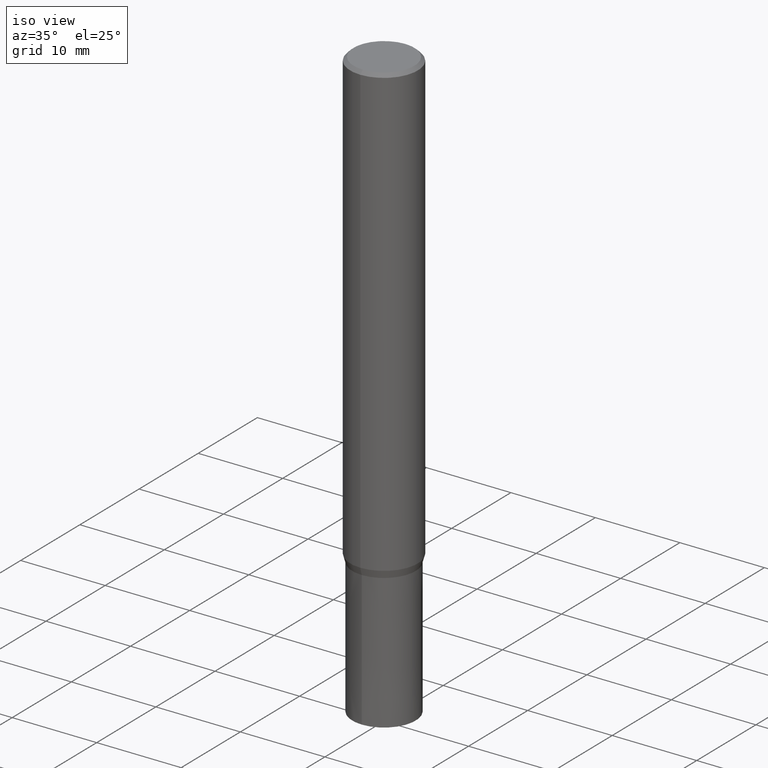
[diagram: clean part render]
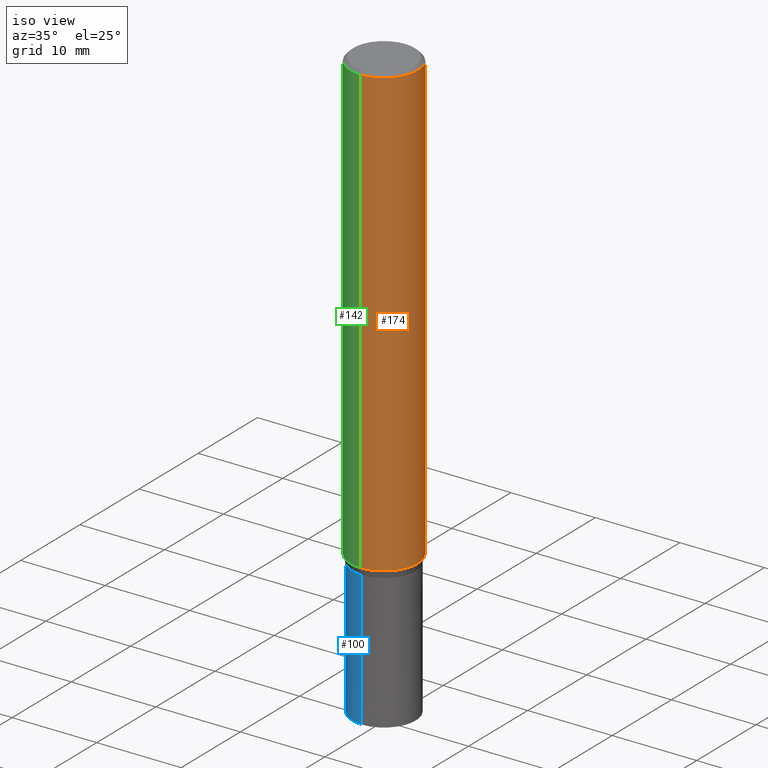
[diagram: same view with three faces highlighted in distinct colors, each labeled with its STEP entity id]
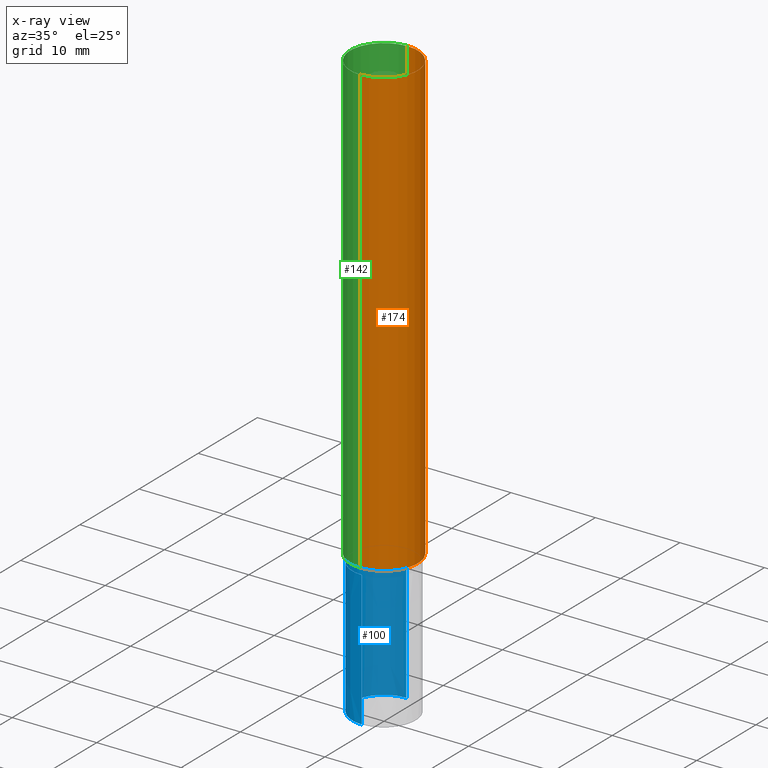
[diagram: x-ray of the same camera — body ghosted, the three highlighted faces saturated]
A machine part, iso view with three faces highlighted in distinct colors.
The next image is the same camera in x-ray (body ghosted, the three faces saturated) — at least one of them is partly hidden behind the body in this view.
Their STEP definitions:

[orange] entity #174 — the highlighted cylindrical surface (partial cylindrical patch) has radius 4 mm, axis along (-0, -0, 1).
#98=EDGE_CURVE('',#120,#150,#222,.T.);
#112=EDGE_CURVE('',#134,#128,#238,.T.);
#120=VERTEX_POINT('',#247);
#126=EDGE_CURVE('',#134,#120,#255,.T.);
#128=VERTEX_POINT('',#257);
#134=VERTEX_POINT('',#264);
#150=VERTEX_POINT('',#281);
#160=EDGE_CURVE('',#150,#128,#291,.T.);
#174=ADVANCED_FACE('',(#307),#308,.T.);
#222=CIRCLE('',#351,4.0);
#238=CIRCLE('',#369,4.0);
#247=CARTESIAN_POINT('',(0.0,4.0,-53.128));
#255=LINE('',#388,#389);
#257=CARTESIAN_POINT('',(4.89842541528951E-016,-4.0,-0.399999999999999));
#264=CARTESIAN_POINT('',(0.0,4.0,-0.399999999999999));
#281=CARTESIAN_POINT('',(4.89842541528951E-016,-4.0,-53.128));
#291=LINE('',#436,#437);
#307=FACE_OUTER_BOUND('',#458,.T.);
#308=CYLINDRICAL_SURFACE('',#459,4.0);
#351=AXIS2_PLACEMENT_3D('',#492,#493,#494);
#369=AXIS2_PLACEMENT_3D('',#514,#515,#516);
#388=CARTESIAN_POINT('',(-4.89842541528951E-016,4.0,-26.764));
#389=VECTOR('',#542,1.0);
#436=CARTESIAN_POINT('',(4.89842541528951E-016,-4.0,-26.764));
#437=VECTOR('',#573,1.0);
#458=EDGE_LOOP('',(#597,#598,#599,#600));
#459=AXIS2_PLACEMENT_3D('',#601,#602,#603);
#492=CARTESIAN_POINT('',(0.0,0.0,-53.128));
#493=DIRECTION('',(0.0,0.0,-1.0));
#494=DIRECTION('',(0.0,1.0,0.0));
#514=CARTESIAN_POINT('',(0.0,0.0,-0.399999999999999));
#515=DIRECTION('',(0.0,0.0,-1.0));
#516=DIRECTION('',(0.0,1.0,0.0));
#542=DIRECTION('',(0.0,0.0,-1.0));
#573=DIRECTION('',(-0.0,-0.0,1.0));
#597=ORIENTED_EDGE('',*,*,#126,.F.);
#598=ORIENTED_EDGE('',*,*,#112,.T.);
#599=ORIENTED_EDGE('',*,*,#160,.F.);
#600=ORIENTED_EDGE('',*,*,#98,.F.);
#601=CARTESIAN_POINT('',(0.0,0.0,-26.764));
#602=DIRECTION('',(-0.0,-0.0,1.0));
#603=DIRECTION('',(0.0,1.0,0.0));

[blue] entity #100 — the highlighted conical surface has half-angle 0 deg.
#84=EDGE_CURVE('',#106,#118,#205,.T.);
#94=VERTEX_POINT('',#217);
#100=ADVANCED_FACE('',(#224),#225,.T.);
#106=VERTEX_POINT('',#231);
#118=VERTEX_POINT('',#245);
#136=VERTEX_POINT('',#266);
#138=EDGE_CURVE('',#136,#118,#268,.T.);
#148=EDGE_CURVE('',#136,#94,#279,.T.);
#176=EDGE_CURVE('',#94,#106,#310,.T.);
#205=LINE('',#333,#334);
#217=CARTESIAN_POINT('',(4.59215136619853E-016,-3.7499,-54.0));
#224=FACE_OUTER_BOUND('',#353,.T.);
#225=CONICAL_SURFACE('',#354,3.74995,6.24999999993181E-006);
#231=CARTESIAN_POINT('',(0.0,3.7499,-54.0));
#245=CARTESIAN_POINT('',(0.0,3.75,-70.0));
#266=CARTESIAN_POINT('',(4.59227382683391E-016,-3.75,-70.0));
#268=CIRCLE('',#405,3.75);
#279=LINE('',#419,#420);
#310=CIRCLE('',#462,3.7499);
#333=CARTESIAN_POINT('',(-4.59221259651622E-016,3.74995,-62.0));
#334=VECTOR('',#476,1.0);
#353=EDGE_LOOP('',(#496,#497,#498,#499));
#354=AXIS2_PLACEMENT_3D('',#500,#501,#502);
#405=AXIS2_PLACEMENT_3D('',#552,#553,#554);
#419=CARTESIAN_POINT('',(4.59221259651622E-016,-3.74995,-62.0));
#420=VECTOR('',#564,1.0);
#462=AXIS2_PLACEMENT_3D('',#604,#605,#606);
#476=DIRECTION('',(-7.65378971125652E-022,6.24999999989112E-006,-0.999999999980469));
#496=ORIENTED_EDGE('',*,*,#84,.T.);
#497=ORIENTED_EDGE('',*,*,#138,.F.);
#498=ORIENTED_EDGE('',*,*,#148,.T.);
#499=ORIENTED_EDGE('',*,*,#176,.T.);
#500=CARTESIAN_POINT('',(0.0,0.0,-62.0));
#501=DIRECTION('',(0.0,-0.0,-1.0));
#502=DIRECTION('',(0.0,1.0,0.0));
#552=CARTESIAN_POINT('',(0.0,0.0,-70.0));
#553=DIRECTION('',(0.0,0.0,-1.0));
#554=DIRECTION('',(0.0,1.0,0.0));
#564=DIRECTION('',(-7.65378971125652E-022,6.24999999989112E-006,0.999999999980469));
#604=CARTESIAN_POINT('',(0.0,0.0,-54.0));
#605=DIRECTION('',(0.0,0.0,-1.0));
#606=DIRECTION('',(0.0,1.0,0.0));

[green] entity #142 — the highlighted cylindrical surface (partial cylindrical patch) has radius 4 mm, axis along (-0, -0, 1).
#120=VERTEX_POINT('',#247);
#126=EDGE_CURVE('',#134,#120,#255,.T.);
#128=VERTEX_POINT('',#257);
#134=VERTEX_POINT('',#264);
#142=ADVANCED_FACE('',(#272),#273,.T.);
#150=VERTEX_POINT('',#281);
#160=EDGE_CURVE('',#150,#128,#291,.T.);
#178=EDGE_CURVE('',#150,#120,#312,.T.);
#182=EDGE_CURVE('',#128,#134,#316,.T.);
#247=CARTESIAN_POINT('',(0.0,4.0,-53.128));
#255=LINE('',#388,#389);
#257=CARTESIAN_POINT('',(4.89842541528951E-016,-4.0,-0.399999999999999));
#264=CARTESIAN_POINT('',(0.0,4.0,-0.399999999999999));
#272=FACE_OUTER_BOUND('',#409,.T.);
#273=CYLINDRICAL_SURFACE('',#410,4.0);
#281=CARTESIAN_POINT('',(4.89842541528951E-016,-4.0,-53.128));
#291=LINE('',#436,#437);
#312=CIRCLE('',#465,4.0);
#316=CIRCLE('',#471,4.0);
#388=CARTESIAN_POINT('',(-4.89842541528951E-016,4.0,-26.764));
#389=VECTOR('',#542,1.0);
#409=EDGE_LOOP('',(#556,#557,#558,#559));
#410=AXIS2_PLACEMENT_3D('',#560,#561,#562);
#436=CARTESIAN_POINT('',(4.89842541528951E-016,-4.0,-26.764));
#437=VECTOR('',#573,1.0);
#465=AXIS2_PLACEMENT_3D('',#607,#608,#609);
#471=AXIS2_PLACEMENT_3D('',#613,#614,#615);
#542=DIRECTION('',(0.0,0.0,-1.0));
#556=ORIENTED_EDGE('',*,*,#126,.T.);
#557=ORIENTED_EDGE('',*,*,#178,.F.);
#558=ORIENTED_EDGE('',*,*,#160,.T.);
#559=ORIENTED_EDGE('',*,*,#182,.T.);
#560=CARTESIAN_POINT('',(0.0,0.0,-26.764));
#561=DIRECTION('',(-0.0,-0.0,1.0));
#562=DIRECTION('',(0.0,1.0,0.0));
#573=DIRECTION('',(-0.0,-0.0,1.0));
#607=CARTESIAN_POINT('',(0.0,0.0,-53.128));
#608=DIRECTION('',(0.0,0.0,-1.0));
#609=DIRECTION('',(0.0,1.0,0.0));
#613=CARTESIAN_POINT('',(0.0,0.0,-0.399999999999999));
#614=DIRECTION('',(0.0,0.0,-1.0));
#615=DIRECTION('',(0.0,1.0,0.0));